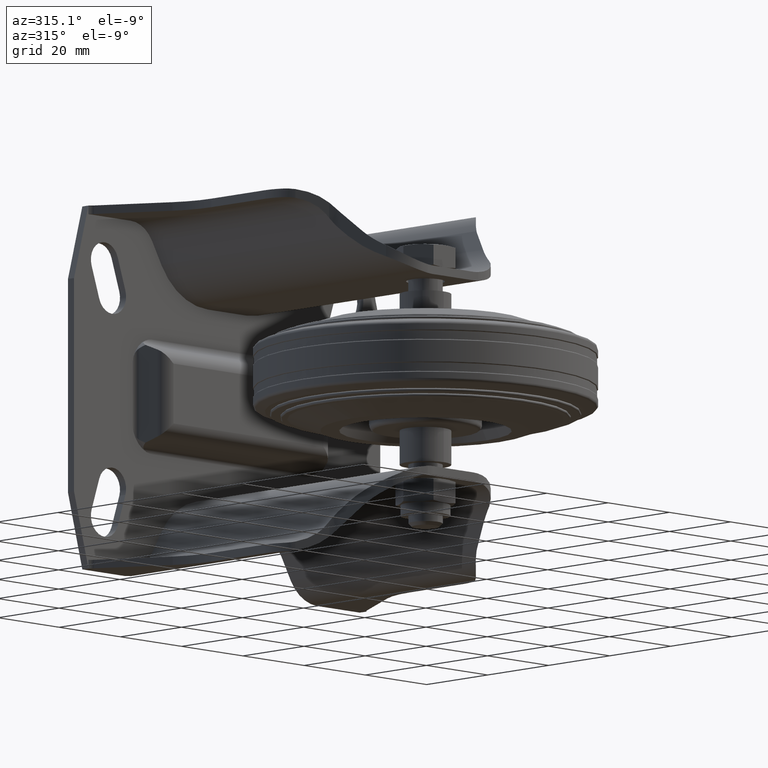
[diagram: clean part render]
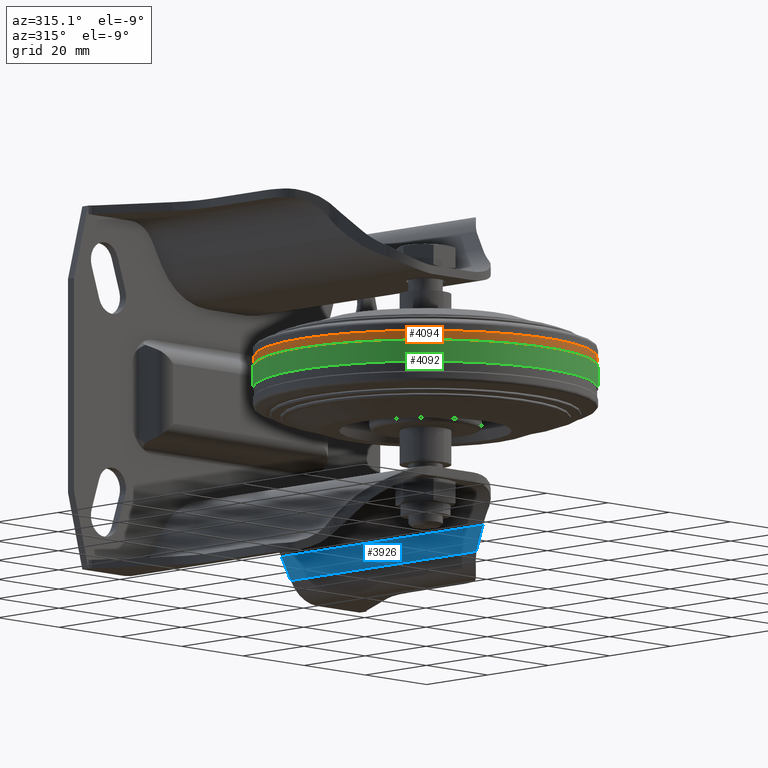
[diagram: same view with three faces highlighted in distinct colors, each labeled with its STEP entity id]
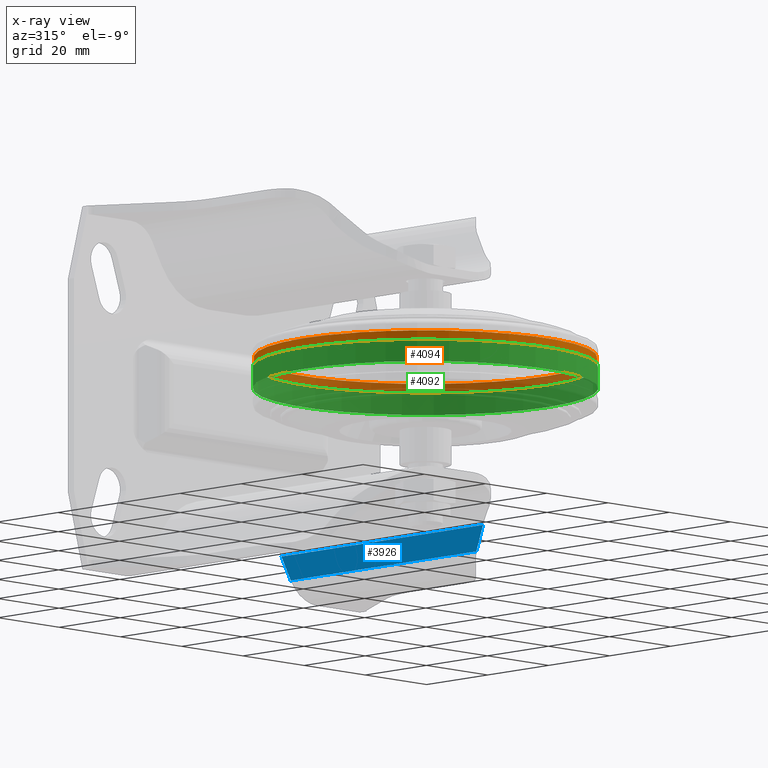
[diagram: x-ray of the same camera — body ghosted, the three highlighted faces saturated]
A machine part, auxiliary view with three faces highlighted in distinct colors.
The next image is the same camera in x-ray (body ghosted, the three faces saturated) — at least one of them is partly hidden behind the body in this view.
Their STEP definitions:

[orange] entity #4094 — the highlighted cylindrical surface (bore or boss wall) has radius 39.75 mm, axis along (0, 0, -1).
#566=LINE('',#7456,#833);
#833=VECTOR('',#5901,39.75);
#913=CYLINDRICAL_SURFACE('',#4679,39.75);
#1148=FACE_OUTER_BOUND('',#1421,.T.);
#1421=EDGE_LOOP('',(#3790,#3791,#3792,#3793));
#1629=CIRCLE('',#4678,39.75);
#1630=CIRCLE('',#4680,39.75);
#2051=VERTEX_POINT('',#7451);
#2052=VERTEX_POINT('',#7455);
#2632=EDGE_CURVE('',#2051,#2051,#1629,.T.);
#2633=EDGE_CURVE('',#2051,#2052,#566,.T.);
#2634=EDGE_CURVE('',#2052,#2052,#1630,.T.);
#3790=ORIENTED_EDGE('',*,*,#2632,.F.);
#3791=ORIENTED_EDGE('',*,*,#2633,.T.);
#3792=ORIENTED_EDGE('',*,*,#2634,.T.);
#3793=ORIENTED_EDGE('',*,*,#2633,.F.);
#4094=ADVANCED_FACE('',(#1148),#913,.T.);
#4678=AXIS2_PLACEMENT_3D('',#7453,#5897,#5898);
#4679=AXIS2_PLACEMENT_3D('',#7454,#5899,#5900);
#4680=AXIS2_PLACEMENT_3D('',#7457,#5902,#5903);
#5897=DIRECTION('center_axis',(6.12323399573677E-17,0.,-1.));
#5898=DIRECTION('ref_axis',(-1.,0.,-6.12323399573677E-17));
#5899=DIRECTION('center_axis',(6.12323399573677E-17,0.,-1.));
#5900=DIRECTION('ref_axis',(-1.,0.,-6.12323399573677E-17));
#5901=DIRECTION('',(-6.12323399573677E-17,0.,1.));
#5902=DIRECTION('center_axis',(6.12323399573677E-17,0.,-1.));
#5903=DIRECTION('ref_axis',(-1.,0.,-6.12323399573677E-17));
#7451=CARTESIAN_POINT('',(39.75,-4.86797102661073E-15,2.75));
#7453=CARTESIAN_POINT('Origin',(-1.68388934882761E-16,0.,2.75));
#7454=CARTESIAN_POINT('Origin',(7.65404249467096E-16,0.,-12.5));
#7455=CARTESIAN_POINT('',(39.75,-4.86797102661073E-15,4.75));
#7456=CARTESIAN_POINT('',(39.75,-4.86797102661073E-15,-12.5));
#7457=CARTESIAN_POINT('Origin',(-2.90853614797497E-16,0.,4.75));

[blue] entity #3926 — the highlighted planar face has unit normal (-0.866, 0, -0.5).
#61=ELLIPSE('',#4344,20.0000000000003,10.0000000000002);
#229=PLANE('',#4343);
#350=LINE('',#6519,#617);
#351=LINE('',#6523,#618);
#352=LINE('',#6525,#619);
#353=LINE('',#6526,#620);
#617=VECTOR('',#5013,1000.);
#618=VECTOR('',#5016,1000.);
#619=VECTOR('',#5017,1000.);
#620=VECTOR('',#5018,1000.);
#980=FACE_OUTER_BOUND('',#1230,.T.);
#1230=EDGE_LOOP('',(#2931,#2932,#2933,#2934,#2935));
#1808=VERTEX_POINT('',#6517);
#1809=VERTEX_POINT('',#6518);
#1810=VERTEX_POINT('',#6520);
#1811=VERTEX_POINT('',#6522);
#1812=VERTEX_POINT('',#6524);
#2230=EDGE_CURVE('',#1808,#1809,#350,.T.);
#2231=EDGE_CURVE('',#1808,#1810,#61,.F.);
#2232=EDGE_CURVE('',#1810,#1811,#351,.T.);
#2233=EDGE_CURVE('',#1811,#1812,#352,.T.);
#2234=EDGE_CURVE('',#1809,#1812,#353,.T.);
#2931=ORIENTED_EDGE('',*,*,#2230,.F.);
#2932=ORIENTED_EDGE('',*,*,#2231,.T.);
#2933=ORIENTED_EDGE('',*,*,#2232,.T.);
#2934=ORIENTED_EDGE('',*,*,#2233,.T.);
#2935=ORIENTED_EDGE('',*,*,#2234,.F.);
#3926=ADVANCED_FACE('',(#980),#229,.T.);
#4343=AXIS2_PLACEMENT_3D('',#6516,#5011,#5012);
#4344=AXIS2_PLACEMENT_3D('',#6521,#5014,#5015);
#5011=DIRECTION('center_axis',(-0.866025403784439,0.,-0.5));
#5012=DIRECTION('ref_axis',(-0.5,0.,0.866025403784439));
#5013=DIRECTION('',(0.,1.,0.));
#5014=DIRECTION('center_axis',(-0.866025403784439,0.,-0.5));
#5015=DIRECTION('ref_axis',(0.5,0.,-0.866025403784439));
#5016=DIRECTION('',(-0.377964473009228,-0.654653670707977,0.654653670707977));
#5017=DIRECTION('',(0.,1.,0.));
#5018=DIRECTION('',(-0.5,0.,0.866025403784439));
#6516=CARTESIAN_POINT('Origin',(22.7555534994651,65.,-37.5));
#6517=CARTESIAN_POINT('',(22.7555534994651,6.10483681576369,-37.5));
#6518=CARTESIAN_POINT('',(22.7555534994651,67.,-37.5));
#6519=CARTESIAN_POINT('',(22.7555534994651,65.,-37.5));
#6520=CARTESIAN_POINT('',(22.341737512063,5.44831319429633,-36.7832496848352));
#6521=CARTESIAN_POINT('Origin',(31.0019915499075,0.448313194296253,-51.7832496848355));
#6522=CARTESIAN_POINT('',(19.7244645862196,0.915063509461092,-32.25));
#6523=CARTESIAN_POINT('',(37.3134248225654,31.3800362911206,-62.7149727816595));
#6524=CARTESIAN_POINT('',(19.7244645862196,67.,-32.25));
#6525=CARTESIAN_POINT('',(19.7244645862196,65.,-32.25));
#6526=CARTESIAN_POINT('',(22.7555534994651,67.,-37.5));

[green] entity #4092 — the highlighted cylindrical surface (bore or boss wall) has radius 40 mm, axis along (0, 0, -1).
#565=LINE('',#7448,#832);
#832=VECTOR('',#5890,40.);
#912=CYLINDRICAL_SURFACE('',#4674,40.);
#1146=FACE_OUTER_BOUND('',#1419,.T.);
#1419=EDGE_LOOP('',(#3782,#3783,#3784,#3785));
#1626=CIRCLE('',#4673,40.);
#1627=CIRCLE('',#4675,40.);
#2049=VERTEX_POINT('',#7443);
#2050=VERTEX_POINT('',#7447);
#2628=EDGE_CURVE('',#2049,#2049,#1626,.T.);
#2629=EDGE_CURVE('',#2049,#2050,#565,.T.);
#2630=EDGE_CURVE('',#2050,#2050,#1627,.T.);
#3782=ORIENTED_EDGE('',*,*,#2628,.F.);
#3783=ORIENTED_EDGE('',*,*,#2629,.T.);
#3784=ORIENTED_EDGE('',*,*,#2630,.T.);
#3785=ORIENTED_EDGE('',*,*,#2629,.F.);
#4092=ADVANCED_FACE('',(#1146),#912,.T.);
#4673=AXIS2_PLACEMENT_3D('',#7445,#5886,#5887);
#4674=AXIS2_PLACEMENT_3D('',#7446,#5888,#5889);
#4675=AXIS2_PLACEMENT_3D('',#7449,#5891,#5892);
#5886=DIRECTION('center_axis',(6.12323399573677E-17,0.,-1.));
#5887=DIRECTION('ref_axis',(-1.,0.,-6.12323399573677E-17));
#5888=DIRECTION('center_axis',(6.12323399573677E-17,0.,-1.));
#5889=DIRECTION('ref_axis',(-1.,0.,-6.12323399573677E-17));
#5890=DIRECTION('',(-6.12323399573677E-17,0.,1.));
#5891=DIRECTION('center_axis',(6.12323399573677E-17,0.,-1.));
#5892=DIRECTION('ref_axis',(-1.,0.,-6.12323399573677E-17));
#7443=CARTESIAN_POINT('',(40.,-4.89858719658941E-15,-2.5));
#7445=CARTESIAN_POINT('Origin',(1.53080849893419E-16,0.,-2.5));
#7446=CARTESIAN_POINT('Origin',(7.65404249467096E-16,0.,-12.5));
#7447=CARTESIAN_POINT('',(40.,-4.89858719658941E-15,2.5));
#7448=CARTESIAN_POINT('',(40.,-4.89858719658941E-15,-12.5));
#7449=CARTESIAN_POINT('Origin',(-1.53080849893419E-16,0.,2.5));